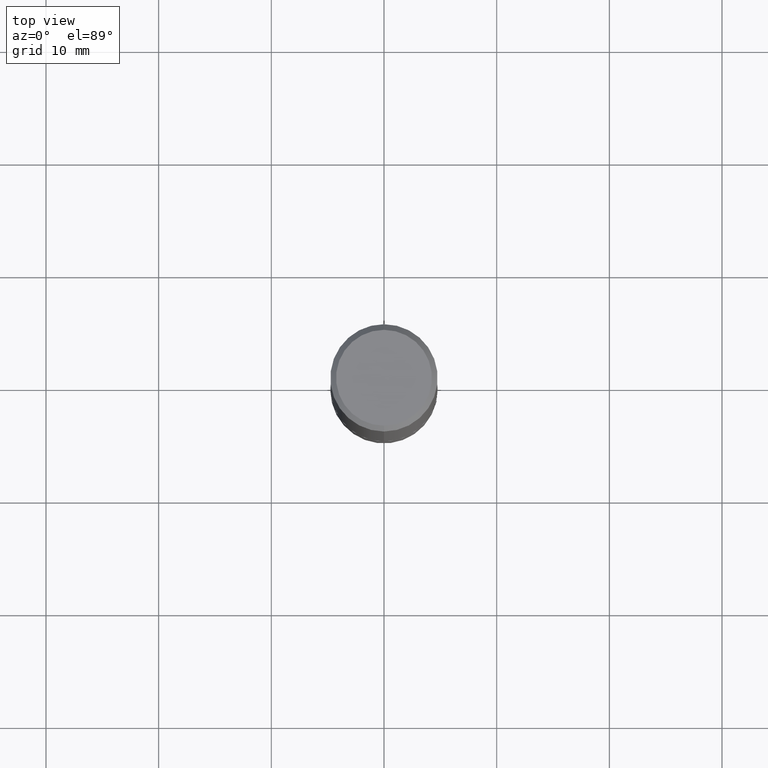
[diagram: clean part render]
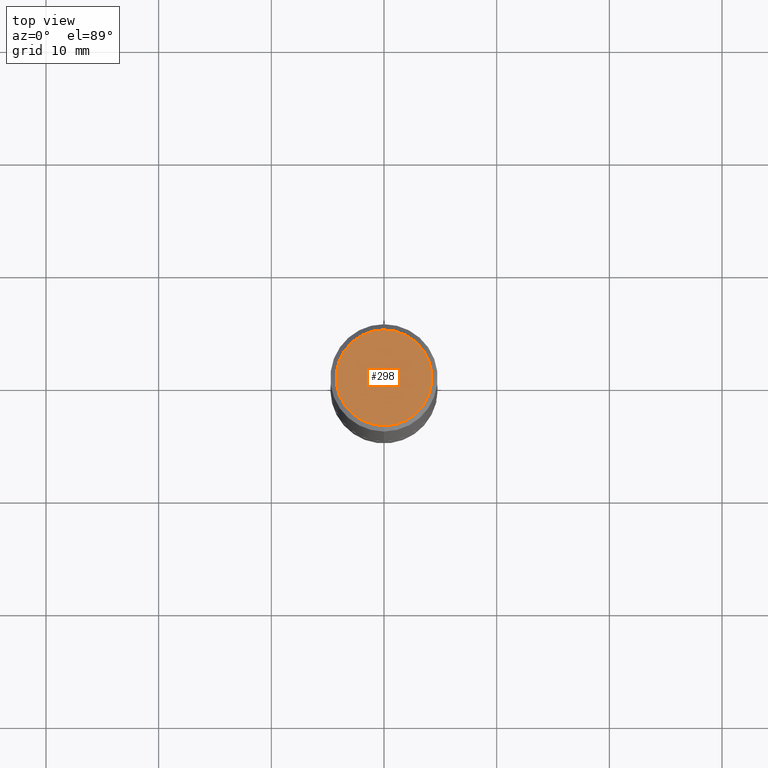
[diagram: same view with one face highlighted and labeled with its STEP entity id]
A machine part, top view. The second image highlights one B-rep face of the part: STEP entity #298.
In plain terms, the highlighted planar face has unit normal (0, -0, -1).
Its self-contained STEP definition (entity closure, byte-faithful):
#19 = AXIS2_PLACEMENT_3D ( 'NONE', #226, #133, #359 ) ;
#36 = DIRECTION ( 'NONE',  ( -2.445162114595160575E-29, 3.491920538655792507E-15, 1.000000000000000000 ) ) ;
#46 = EDGE_CURVE ( 'NONE', #124, #115, #407, .T. ) ;
#78 = EDGE_CURVE ( 'NONE', #115, #124, #86, .T. ) ;
#86 = CIRCLE ( 'NONE', #348, 0.1675000000000000100 ) ;
#88 = DIRECTION ( 'NONE',  ( -6.982962677686265922E-15, -1.000000000000000000, 3.491920538655792902E-15 ) ) ;
#115 = VERTEX_POINT ( 'NONE', #311 ) ;
#124 = VERTEX_POINT ( 'NONE', #227 ) ;
#133 = DIRECTION ( 'NONE',  ( 2.445162114595160014E-29, -3.491920538655792902E-15, -1.000000000000000000 ) ) ;
#163 = CARTESIAN_POINT ( 'NONE',  ( -5.236590585173793708E-46, 7.478341868521650963E-32, 2.141612841912039052E-17 ) ) ;
#187 = CARTESIAN_POINT ( 'NONE',  ( -5.236590585173793708E-46, 7.478341868521650963E-32, 2.141612841912039052E-17 ) ) ;
#225 = AXIS2_PLACEMENT_3D ( 'NONE', #163, #357, #88 ) ;
#226 = CARTESIAN_POINT ( 'NONE',  ( 1.169646248512449595E-15, 0.1675000000000000100, -5.741886260152851058E-16 ) ) ;
#227 = CARTESIAN_POINT ( 'NONE',  ( -1.217738394604446837E-15, -0.1675000000000000100, 6.063128186439657255E-16 ) ) ;
#248 = EDGE_LOOP ( 'NONE', ( #300, #292 ) ) ;
#259 = FACE_OUTER_BOUND ( 'NONE', #248, .T. ) ;
#291 = DIRECTION ( 'NONE',  ( -6.982962677686265922E-15, -1.000000000000000000, 3.491920538655792902E-15 ) ) ;
#292 = ORIENTED_EDGE ( 'NONE', *, *, #46, .T. ) ;
#298 = ADVANCED_FACE ( 'NONE', ( #259 ), #394, .F. ) ;
#300 = ORIENTED_EDGE ( 'NONE', *, *, #78, .T. ) ;
#311 = CARTESIAN_POINT ( 'NONE',  ( 1.239475875289312696E-15, 0.1675000000000000100, -5.634805618057250307E-16 ) ) ;
#348 = AXIS2_PLACEMENT_3D ( 'NONE', #187, #36, #291 ) ;
#357 = DIRECTION ( 'NONE',  ( -2.445162114595160575E-29, 3.491920538655792507E-15, 1.000000000000000000 ) ) ;
#359 = DIRECTION ( 'NONE',  ( 6.982962677686265922E-15, 1.000000000000000000, -3.491920538655792902E-15 ) ) ;
#394 = PLANE ( 'NONE',  #19 ) ;
#407 = CIRCLE ( 'NONE', #225, 0.1675000000000000100 ) ;